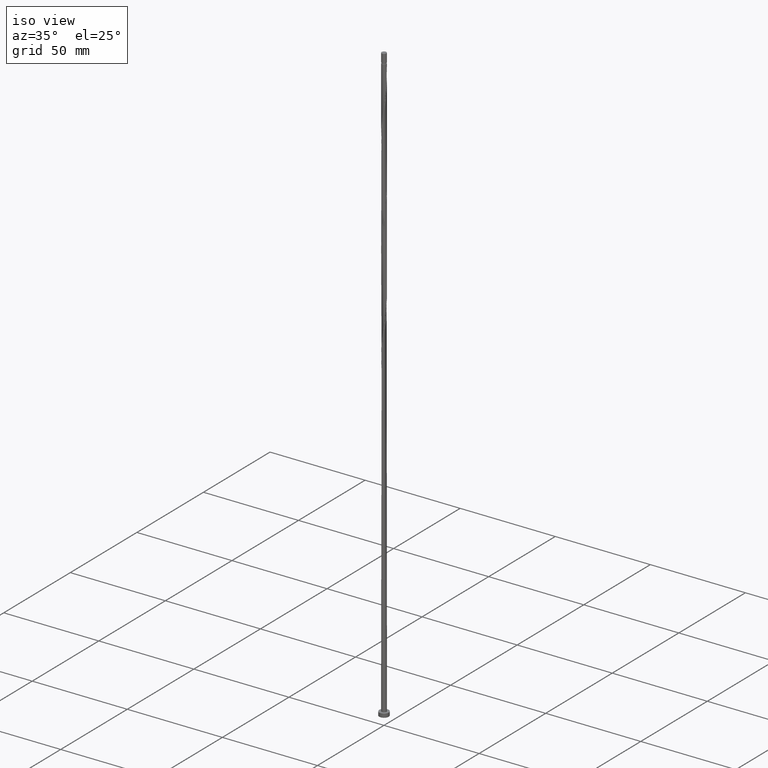
[diagram: clean part render]
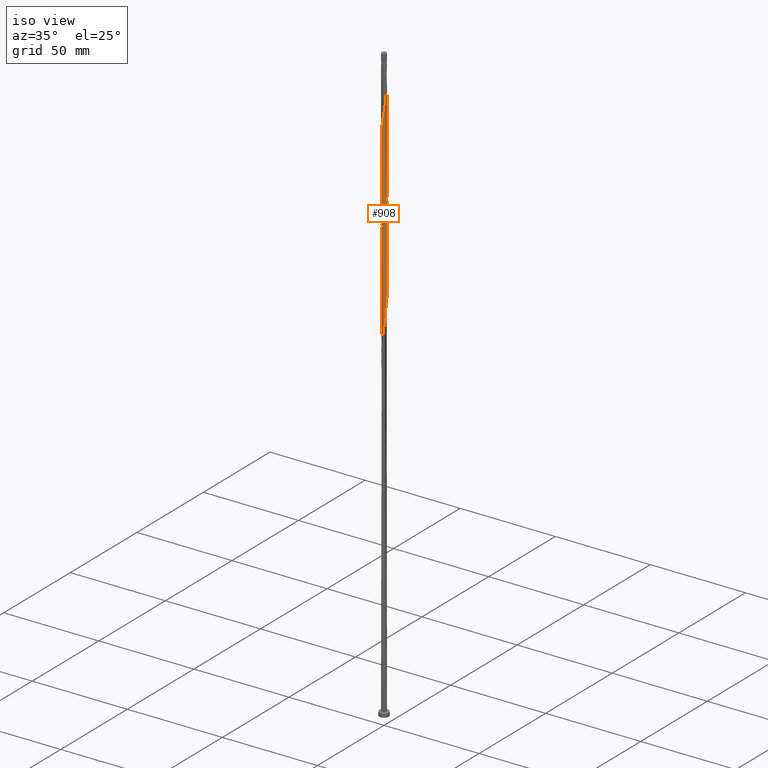
[diagram: same view with one face highlighted and labeled with its STEP entity id]
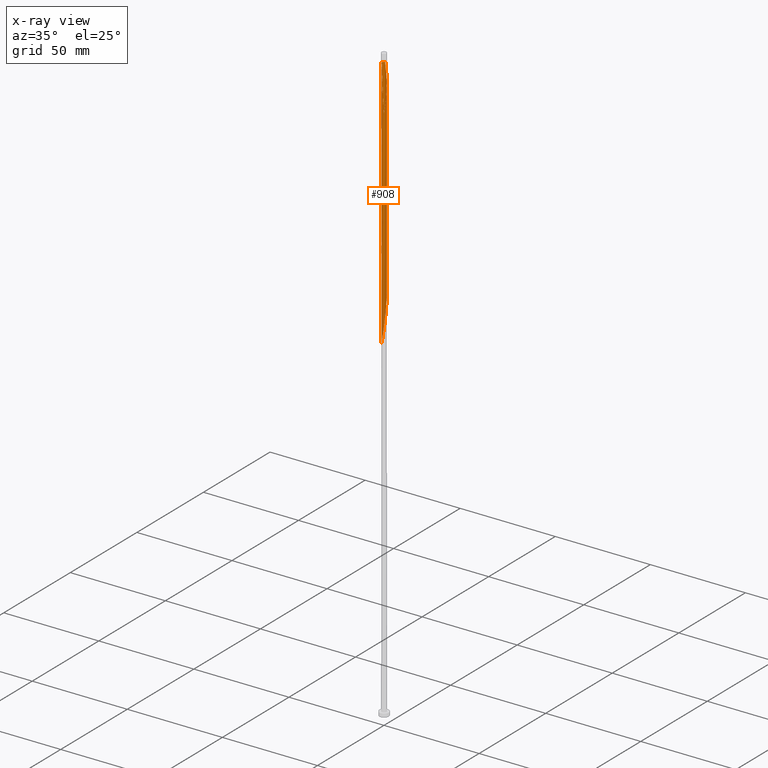
[diagram: x-ray of the same camera — body ghosted, the highlighted face saturated]
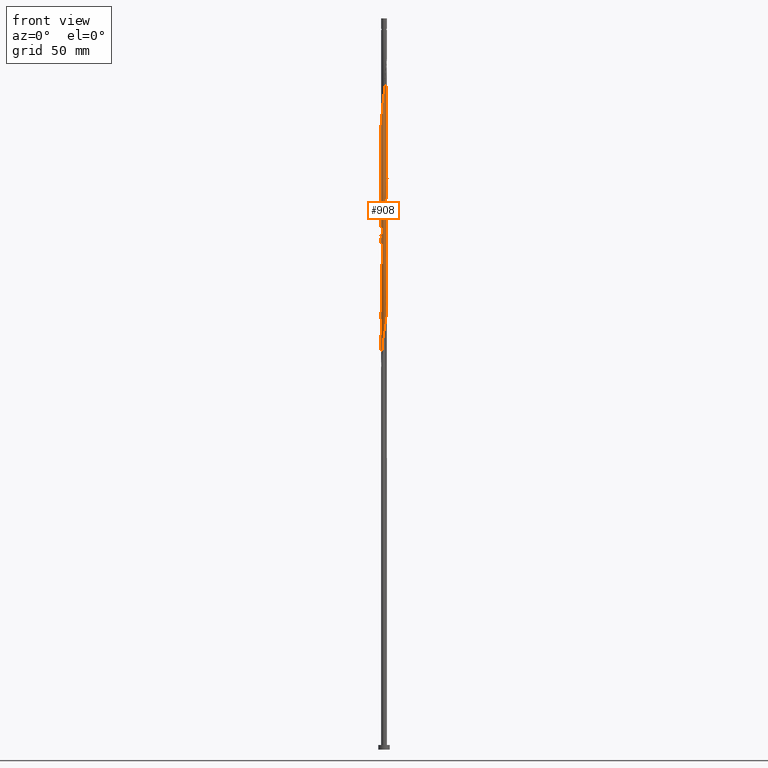
[diagram: same view with one face highlighted and labeled with its STEP entity id]
A machine part, iso view. The second image highlights one B-rep face of the part: STEP entity #908.
The next image is the same camera in x-ray: the body ghosted, the highlighted face saturated — about 0% of this face is hidden behind the body in this view.
A second angle (front view) of the same face is appended — the face is thin or edge-on in the first view.
In plain terms, the highlighted cylindrical surface (bore or boss wall) has radius 1.25 mm, axis along (-0, -0, -1).
Its self-contained STEP definition (entity closure, byte-faithful):
#13 = CARTESIAN_POINT ( 'NONE',  ( -0.9957596457837575299, 0.7556207566157809863, 266.8727693201498141 ) ) ;
#31 = CARTESIAN_POINT ( 'NONE',  ( 1.250000000000000444, 8.097232135427402911E-16, 246.0472863980558884 ) ) ;
#37 = CARTESIAN_POINT ( 'NONE',  ( 1.250000000000000444, 8.097232135427402911E-16, 246.0472863980558884 ) ) ;
#43 = CARTESIAN_POINT ( 'NONE',  ( -0.3073944042222366835, -1.211614080577170016, 279.9977693201497573 ) ) ;
#48 = CARTESIAN_POINT ( 'NONE',  ( 0.9106216336863114380, -0.8678159233401304684, 239.6852693201497857 ) ) ;
#57 = CARTESIAN_POINT ( 'NONE',  ( -0.9582531330244838941, -0.8026524360199506214, 225.6227693201498141 ) ) ;
#63 = CARTESIAN_POINT ( 'NONE',  ( -0.4439105247052367864, -1.176979049344608397, 279.0602693201499278 ) ) ;
#68 = CARTESIAN_POINT ( 'NONE',  ( 0.1708782837392372467, 1.246249111809732746, 307.1852693201498710 ) ) ;
#69 = CARTESIAN_POINT ( 'NONE',  ( 0.6434255898914319483, 1.080897657881203955, 202.1852693201497857 ) ) ;
#76 = DIRECTION ( 'NONE',  ( -1.000000000000000000, 0.000000000000000000, 0.000000000000000000 ) ) ;
#78 = CARTESIAN_POINT ( 'NONE',  ( 1.048690342708837875, 0.6946832383535894717, 198.4352693201497857 ) ) ;
#81 = CARTESIAN_POINT ( 'NONE',  ( -1.080897657881205953, -0.6434255898914326144, 273.4352693201498141 ) ) ;
#94 = CIRCLE ( 'NONE', #920, 1.249999999999974021 ) ;
#110 = CARTESIAN_POINT ( 'NONE',  ( -0.8678159233401304684, -0.9106216336863114380, 174.0602693201498141 ) ) ;
#116 = EDGE_CURVE ( 'NONE', #668, #904, #674, .T. ) ;
#117 = CARTESIAN_POINT ( 'NONE',  ( -1.080897657881204177, 0.6434255898914318372, 267.8102693201497573 ) ) ;
#126 = CARTESIAN_POINT ( 'NONE',  ( 0.2487468592766578501, 1.224999999999999645, 257.4977693201497573 ) ) ;
#140 = CARTESIAN_POINT ( 'NONE',  ( -1.250000000000000000, 6.194196011432944221E-16, 272.2972863980558600 ) ) ;
#146 = EDGE_LOOP ( 'NONE', ( #1219, #811, #637, #625, #961, #1635, #325, #615 ) ) ;
#151 = CARTESIAN_POINT ( 'NONE',  ( -1.196972960074379033, 0.3867712106542936512, 269.6852693201497573 ) ) ;
#167 = CARTESIAN_POINT ( 'NONE',  ( 1.250000000000000000, 1.530808498934191571E-16, 315.0000000000000000 ) ) ;
#168 = CARTESIAN_POINT ( 'NONE',  ( 1.224999999999999645, -0.2487468592766577391, 244.3727693201497857 ) ) ;
#176 = CARTESIAN_POINT ( 'NONE',  ( -1.211614080577168240, -0.3073944042222359063, 221.8727693201497573 ) ) ;
#182 = CARTESIAN_POINT ( 'NONE',  ( 1.196972960074381698, 0.3867712106542938177, 297.8102693201497573 ) ) ;
#187 = CARTESIAN_POINT ( 'NONE',  ( 0.1708782837392361920, -1.246249111809731192, 234.0602693201498425 ) ) ;
#196 = CARTESIAN_POINT ( 'NONE',  ( 0.03007788792010794229, 1.249638075867676612, 308.1227693201496436 ) ) ;
#197 = CARTESIAN_POINT ( 'NONE',  ( 0.9106216336863114380, -0.8678159233401304684, 187.1852693201497857 ) ) ;
#199 = EDGE_CURVE ( 'NONE', #1132, #1514, #871, .T. ) ;
#207 = CARTESIAN_POINT ( 'NONE',  ( 0.5692968815294126017, -1.112834696026721693, 236.8727693201497857 ) ) ;
#216 = CARTESIAN_POINT ( 'NONE',  ( 0.3073944042222357398, -1.211614080577168240, 182.4977693201497857 ) ) ;
#226 = DIRECTION ( 'NONE',  ( -0.000000000000000000, -0.000000000000000000, -1.000000000000000000 ) ) ;
#227 = CARTESIAN_POINT ( 'NONE',  ( -1.249638075867675280, -0.03007788792010730045, 167.4977693201498141 ) ) ;
#252 = CARTESIAN_POINT ( 'NONE',  ( -1.250000000000000000, 0.000000000000000000, 315.0000000000000000 ) ) ;
#268 = CARTESIAN_POINT ( 'NONE',  ( 0.1107225078990215772, 1.253027039925620034, 258.4352693201497004 ) ) ;
#278 = EDGE_CURVE ( 'NONE', #1058, #1514, #1361, .T. ) ;
#290 = CARTESIAN_POINT ( 'NONE',  ( 1.250000000000000000, 0.01504112145798889265, 246.1476490862810067 ) ) ;
#301 = CARTESIAN_POINT ( 'NONE',  ( 0.5150984002728631328, -1.138935308977793159, 285.6227693201497004 ) ) ;
#309 =( BOUNDED_CURVE ( )  B_SPLINE_CURVE ( 2, ( #140, #973, #1100, #151, #725, #117, #13, #439, #1127, #691, #708, #1527, #856, #991, #1389, #268, #126, #1256, #1413, #1798, #1804, #999, #565, #1117, #1560, #419, #573, #430, #982, #290, #864 ),
 .UNSPECIFIED., .F., .T. ) 
 B_SPLINE_CURVE_WITH_KNOTS ( ( 3, 2, 2, 2, 2, 2, 2, 2, 2, 2, 2, 2, 2, 2, 2, 3 ),
 ( 0.4295303401299221391, 0.4375000000000000000, 0.4464285714285714524, 0.4553571428571428492, 0.4642857142857143016, 0.4732142857142856984, 0.4821428571428571508, 0.4910714285714285476, 0.5000000000000000000, 0.5089285714285713969, 0.5178571428571429047, 0.5267857142857143016, 0.5357142857142856984, 0.5446428571428570953, 0.5535714285714286031, 0.5545303401299218615 ),
 .UNSPECIFIED. ) 
 CURVE ( )  GEOMETRIC_REPRESENTATION_ITEM ( )  RATIONAL_B_SPLINE_CURVE ( ( 0.9079949616362634757, 0.9039886423361265244, 0.9090909090909936596, 0.9033747362666680880, 0.9090909090909936596, 0.9033747362666680880, 0.9090909090909936596, 0.9033747362666680880, 0.9090909090909936596, 0.9033747362666680880, 0.9090909090909936596, 0.9033747362666680880, 0.9090909090909936596, 0.9033747362666680880, 0.9090909090909936596, 0.9033747362666680880, 0.9090909090909936596, 0.9033747362666680880, 0.9090909090909936596, 0.9033747362666680880, 0.9090909090909936596, 0.9033747362666680880, 0.9090909090909936596, 0.9033747362666680880, 0.9090909090909936596, 0.9033747362666680880, 0.9090909090909936596, 0.9033747362666680880, 0.9090909090909936596, 0.9084770030215354453, 0.9079949616362638087 ) ) 
 REPRESENTATION_ITEM ( '' )  );
#311 = CARTESIAN_POINT ( 'NONE',  ( 1.112834696026723247, -0.5692968815294138230, 291.2477693201497573 ) ) ;
#317 = CARTESIAN_POINT ( 'NONE',  ( 1.246249111809731192, 0.1708782837392361365, 194.6852693201497857 ) ) ;
#324 = CARTESIAN_POINT ( 'NONE',  ( 1.253027039925622255, 0.1107225078990213690, 295.9352693201499278 ) ) ;
#325 = ORIENTED_EDGE ( 'NONE', *, *, #1773, .T. ) ;
#328 = CARTESIAN_POINT ( 'NONE',  ( -0.03007788792010740106, 1.249638075867675280, 206.8727693201498141 ) ) ;
#338 = CARTESIAN_POINT ( 'NONE',  ( -1.250000000000001998, -2.723953667678323534E-16, 268.9482522422436546 ) ) ;
#342 = CARTESIAN_POINT ( 'NONE',  ( -0.3073944042222359618, 1.211614080577168240, 208.7477693201497573 ) ) ;
#350 = CARTESIAN_POINT ( 'NONE',  ( 1.196972960074379033, -0.3867712106542938177, 243.4352693201498141 ) ) ;
#362 = CARTESIAN_POINT ( 'NONE',  ( -0.2487468592766576836, -1.224999999999999645, 178.7477693201497289 ) ) ;
#396 = CARTESIAN_POINT ( 'NONE',  ( -1.211614080577168240, -0.3073944042222359063, 169.3727693201497857 ) ) ;
#409 = CARTESIAN_POINT ( 'NONE',  ( -0.6946832383535914701, -1.048690342708839429, 277.1852693201498710 ) ) ;
#419 = CARTESIAN_POINT ( 'NONE',  ( 1.176979049344605732, 0.4439105247052353431, 249.0602693201497004 ) ) ;
#430 = CARTESIAN_POINT ( 'NONE',  ( 1.246249111809731192, 0.1708782837392361365, 247.1852693201497289 ) ) ;
#436 = CARTESIAN_POINT ( 'NONE',  ( 0.4439105247052369529, 1.176979049344608175, 305.3102693201497573 ) ) ;
#439 = CARTESIAN_POINT ( 'NONE',  ( -0.9106216336863114380, 0.8678159233401304684, 265.9352693201497573 ) ) ;
#458 = CARTESIAN_POINT ( 'NONE',  ( 0.3867712106542939288, -1.196972960074381698, 284.6852693201498141 ) ) ;
#463 = CARTESIAN_POINT ( 'NONE',  ( -0.5150984002728626887, -1.138935308977791161, 229.3727693201497573 ) ) ;
#471 = CARTESIAN_POINT ( 'NONE',  ( 1.249638075867676612, -0.03007788792010785903, 294.9977693201496436 ) ) ;
#472 = VERTEX_POINT ( 'NONE', #1747 ) ;
#475 = CARTESIAN_POINT ( 'NONE',  ( 0.3867712106542938177, 1.196972960074379033, 204.0602693201497573 ) ) ;
#482 = CARTESIAN_POINT ( 'NONE',  ( -0.03007788792010775147, -1.249638075867676612, 281.8727693201496436 ) ) ;
#486 = CARTESIAN_POINT ( 'NONE',  ( -1.196972960074379033, 0.3867712106542936512, 217.1852693201498141 ) ) ;
#494 = CARTESIAN_POINT ( 'NONE',  ( -0.5692968815294127127, 1.112834696026721248, 210.6227693201497289 ) ) ;
#503 = CARTESIAN_POINT ( 'NONE',  ( -1.246249111809731192, -0.1708782837392362752, 220.9352693201497573 ) ) ;
#506 = EDGE_CURVE ( 'NONE', #904, #1132, #309, .T. ) ;
#507 = CARTESIAN_POINT ( 'NONE',  ( -0.9106216336863132144, -0.8678159233401315786, 275.3102693201498710 ) ) ;
#515 = CARTESIAN_POINT ( 'NONE',  ( 0.8026524360199506214, -0.9582531330244840051, 186.2477693201497573 ) ) ;
#528 = CARTESIAN_POINT ( 'NONE',  ( -1.250000000000000000, 0.000000000000000000, 315.0000000000000000 ) ) ;
#533 = CARTESIAN_POINT ( 'NONE',  ( -0.9582531330244838941, -0.8026524360199506214, 173.1227693201497573 ) ) ;
#541 = CARTESIAN_POINT ( 'NONE',  ( 0.6946832383535898048, -1.048690342708838097, 185.3102693201498141 ) ) ;
#565 = CARTESIAN_POINT ( 'NONE',  ( 0.9582531330244840051, 0.8026524360199506214, 251.8727693201497857 ) ) ;
#573 = CARTESIAN_POINT ( 'NONE',  ( 1.211614080577168462, 0.3073944042222357398, 248.1227693201497573 ) ) ;
#578 = VERTEX_POINT ( 'NONE', #694 ) ;
#607 = CARTESIAN_POINT ( 'NONE',  ( 0.7556207566157812083, 0.9957596457837575299, 201.2477693201497573 ) ) ;
#615 = ORIENTED_EDGE ( 'NONE', *, *, #506, .F. ) ;
#618 = CARTESIAN_POINT ( 'NONE',  ( -1.048690342708837875, -0.6946832383535898048, 224.6852693201497573 ) ) ;
#625 = ORIENTED_EDGE ( 'NONE', *, *, #278, .T. ) ;
#627 = CARTESIAN_POINT ( 'NONE',  ( -0.1107225078990230621, 1.253027039925622255, 309.0602693201499278 ) ) ;
#628 = CARTESIAN_POINT ( 'NONE',  ( -1.249638075867675280, -0.03007788792010730045, 219.9977693201497289 ) ) ;
#637 = ORIENTED_EDGE ( 'NONE', *, *, #1619, .F. ) ;
#639 = CARTESIAN_POINT ( 'NONE',  ( 1.112834696026721693, 0.5692968815294126017, 197.4977693201498141 ) ) ;
#641 = CARTESIAN_POINT ( 'NONE',  ( -1.250000000000001998, -2.723953667678323534E-16, 268.9482522422436546 ) ) ;
#650 = CARTESIAN_POINT ( 'NONE',  ( -0.6946832383535901378, 1.048690342708837875, 211.5602693201497289 ) ) ;
#668 = VERTEX_POINT ( 'NONE', #1661 ) ;
#674 = LINE ( 'NONE', #528, #891 ) ;
#681 = EDGE_CURVE ( 'NONE', #668, #472, #94, .T. ) ;
#686 = CARTESIAN_POINT ( 'NONE',  ( -1.048690342708837875, -0.6946832383535898048, 172.1852693201498141 ) ) ;
#691 = CARTESIAN_POINT ( 'NONE',  ( -0.6946832383535901378, 1.048690342708837875, 264.0602693201497573 ) ) ;
#694 = CARTESIAN_POINT ( 'NONE',  ( 1.250000000000000000, 1.530808498934191571E-16, 309.9977693201497573 ) ) ;
#708 = CARTESIAN_POINT ( 'NONE',  ( -0.5692968815294127127, 1.112834696026721248, 263.1227693201497004 ) ) ;
#725 = CARTESIAN_POINT ( 'NONE',  ( -1.138935308977791161, 0.5150984002728626887, 268.7477693201497004 ) ) ;
#740 = CARTESIAN_POINT ( 'NONE',  ( -0.4439105247052356207, 1.176979049344605732, 209.6852693201497573 ) ) ;
#747 = FACE_OUTER_BOUND ( 'NONE', #146, .T. ) ;
#751 = CARTESIAN_POINT ( 'NONE',  ( 0.4439105247052355097, -1.176979049344605732, 235.9352693201497289 ) ) ;
#760 = CARTESIAN_POINT ( 'NONE',  ( 1.080897657881203955, -0.6434255898914319483, 189.0602693201498141 ) ) ;
#762 = CARTESIAN_POINT ( 'NONE',  ( -1.250000000000001554, -0.1256297269074057310, 269.7865233212073690 ) ) ;
#769 = CARTESIAN_POINT ( 'NONE',  ( -0.7556207566157812083, -0.9957596457837575299, 227.4977693201497573 ) ) ;
#783 = CARTESIAN_POINT ( 'NONE',  ( 1.080897657881203955, -0.6434255898914319483, 241.5602693201497857 ) ) ;
#786 = CARTESIAN_POINT ( 'NONE',  ( -1.225000000000000977, -0.2487468592766576281, 270.6227693201497004 ) ) ;
#811 = ORIENTED_EDGE ( 'NONE', *, *, #681, .T. ) ;
#822 = VECTOR ( 'NONE', #1310, 1000.000000000000000 ) ;
#828 = CARTESIAN_POINT ( 'NONE',  ( -1.176979049344605732, -0.4439105247052355097, 170.3102693201497857 ) ) ;
#838 = CARTESIAN_POINT ( 'NONE',  ( 0.9957596457837593062, 0.7556207566157816524, 300.6227693201497004 ) ) ;
#845 = CARTESIAN_POINT ( 'NONE',  ( 0.8026524360199519537, 0.9582531330244847823, 302.4977693201497004 ) ) ;
#853 = CARTESIAN_POINT ( 'NONE',  ( 0.5692968815294138230, 1.112834696026723247, 304.3727693201497004 ) ) ;
#856 = CARTESIAN_POINT ( 'NONE',  ( -0.3073944042222359618, 1.211614080577168240, 261.2477693201497004 ) ) ;
#864 = CARTESIAN_POINT ( 'NONE',  ( 1.250000000000000444, 8.097232135427402911E-16, 246.0472863980558884 ) ) ;
#871 =( BOUNDED_CURVE ( )  B_SPLINE_CURVE ( 2, ( #37, #1458, #168, #350, #1193, #783, #1741, #48, #1159, #1750, #207, #751, #1311, #187, #1172, #1721, #1617, #1060, #463, #1433, #769, #1446, #57, #618, #1466, #1201, #176, #503, #628, #1732, #1184, #486, #917, #1584, #1628, #1476, #876, #650, #494, #740, #342, #1341, #328, #1331, #1040, #475, #1297, #69, #607, #1607, #1030, #78, #639, #1711, #1022, #317, #1052, #906, #888, #1598, #899, #760, #1319, #197, #515, #541, #1096, #1759, #216, #1228, #1211, #1662, #362, #1350, #1383, #1645, #955, #110, #533, #686, #938, #828, #396, #1637, #227, #1069, #962 ),
 .UNSPECIFIED., .F., .T. ) 
 B_SPLINE_CURVE_WITH_KNOTS ( ( 3, 2, 2, 2, 2, 2, 2, 2, 2, 2, 2, 2, 2, 2, 2, 2, 2, 2, 2, 2, 2, 2, 2, 2, 2, 2, 2, 2, 2, 2, 2, 2, 2, 2, 2, 2, 2, 2, 2, 2, 2, 2, 2, 3 ),
 ( 0.5545303401299218615, 0.5625000000000000000, 0.5714285714285713969, 0.5803571428571429047, 0.5892857142857143016, 0.5982142857142856984, 0.6071428571428570953, 0.6160714285714286031, 0.6250000000000000000, 0.6339285714285713969, 0.6428571428571429047, 0.6517857142857143016, 0.6607142857142856984, 0.6696428571428570953, 0.6785714285714286031, 0.6875000000000000000, 0.6964285714285713969, 0.7053571428571429047, 0.7142857142857143016, 0.7232142857142856984, 0.7321428571428570953, 0.7410714285714286031, 0.7500000000000000000, 0.7589285714285713969, 0.7678571428571429047, 0.7767857142857143016, 0.7857142857142856984, 0.7946428571428570953, 0.8035714285714286031, 0.8125000000000000000, 0.8214285714285713969, 0.8303571428571429047, 0.8392857142857143016, 0.8482142857142856984, 0.8571428571428570953, 0.8660714285714286031, 0.8750000000000000000, 0.8839285714285713969, 0.8928571428571429047, 0.9017857142857144126, 0.9107142857142858094, 0.9196428571428572063, 0.9285714285714286031, 0.9295303401299217505 ),
 .UNSPECIFIED. ) 
 CURVE ( )  GEOMETRIC_REPRESENTATION_ITEM ( )  RATIONAL_B_SPLINE_CURVE ( ( 0.9079949616362638087, 0.9039886423361263024, 0.9090909090909936596, 0.9033747362666680880, 0.9090909090909936596, 0.9033747362666680880, 0.9090909090909936596, 0.9033747362666680880, 0.9090909090909936596, 0.9033747362666680880, 0.9090909090909936596, 0.9033747362666680880, 0.9090909090909936596, 0.9033747362666680880, 0.9090909090909936596, 0.9033747362666680880, 0.9090909090909936596, 0.9033747362666680880, 0.9090909090909936596, 0.9033747362666680880, 0.9090909090909936596, 0.9033747362666680880, 0.9090909090909936596, 0.9033747362666680880, 0.9090909090909936596, 0.9033747362666680880, 0.9090909090909936596, 0.9033747362666680880, 0.9090909090909936596, 0.9033747362666680880, 0.9090909090909936596, 0.9033747362666680880, 0.9090909090909936596, 0.9033747362666680880, 0.9090909090909936596, 0.9033747362666680880, 0.9090909090909936596, 0.9033747362666680880, 0.9090909090909936596, 0.9033747362666680880, 0.9090909090909936596, 0.9033747362666680880, 0.9090909090909936596, 0.9033747362666680880, 0.9090909090909936596, 0.9033747362666680880, 0.9090909090909936596, 0.9033747362666680880, 0.9090909090909936596, 0.9033747362666680880, 0.9090909090909936596, 0.9033747362666680880, 0.9090909090909936596, 0.9033747362666680880, 0.9090909090909936596, 0.9033747362666680880, 0.9090909090909936596, 0.9033747362666680880, 0.9090909090909936596, 0.9033747362666680880, 0.9090909090909936596, 0.9033747362666680880, 0.9090909090909936596, 0.9033747362666680880, 0.9090909090909936596, 0.9033747362666680880, 0.9090909090909936596, 0.9033747362666680880, 0.9090909090909936596, 0.9033747362666680880, 0.9090909090909936596, 0.9033747362666680880, 0.9090909090909936596, 0.9033747362666680880, 0.9090909090909936596, 0.9033747362666680880, 0.9090909090909936596, 0.9033747362666680880, 0.9090909090909936596, 0.9033747362666680880, 0.9090909090909936596, 0.9033747362666680880, 0.9090909090909936596, 0.9033747362666680880, 0.9090909090909936596, 0.9084770030215355563, 0.9079949616362640308 ) ) 
 REPRESENTATION_ITEM ( '' )  );
#873 = CARTESIAN_POINT ( 'NONE',  ( 0.7556207566157816524, -0.9957596457837590842, 287.4977693201497004 ) ) ;
#876 = CARTESIAN_POINT ( 'NONE',  ( -0.8026524360199506214, 0.9582531330244838941, 212.4977693201497289 ) ) ;
#883 = CARTESIAN_POINT ( 'NONE',  ( 0.6434255898914326144, -1.080897657881205953, 286.5602693201498710 ) ) ;
#887 = LINE ( 'NONE', #167, #822 ) ;
#888 = CARTESIAN_POINT ( 'NONE',  ( 1.224999999999999645, -0.2487468592766577391, 191.8727693201497857 ) ) ;
#891 = VECTOR ( 'NONE', #1224, 1000.000000000000000 ) ;
#899 = CARTESIAN_POINT ( 'NONE',  ( 1.138935308977791161, -0.5150984002728627997, 189.9977693201498425 ) ) ;
#904 = VERTEX_POINT ( 'NONE', #1625 ) ;
#906 = CARTESIAN_POINT ( 'NONE',  ( 1.253027039925620034, -0.1107225078990218131, 192.8102693201497857 ) ) ;
#908 = ADVANCED_FACE ( 'NONE', ( #747 ), #1294, .T. ) ;
#914 = DIRECTION ( 'NONE',  ( -0.000000000000000000, -0.000000000000000000, -1.000000000000000000 ) ) ;
#917 = CARTESIAN_POINT ( 'NONE',  ( -1.138935308977791161, 0.5150984002728626887, 216.2477693201497857 ) ) ;
#920 = AXIS2_PLACEMENT_3D ( 'NONE', #1498, #226, #1087 ) ;
#938 = CARTESIAN_POINT ( 'NONE',  ( -1.112834696026721693, -0.5692968815294127127, 171.2477693201497289 ) ) ;
#955 = CARTESIAN_POINT ( 'NONE',  ( -0.7556207566157812083, -0.9957596457837575299, 174.9977693201497573 ) ) ;
#961 = ORIENTED_EDGE ( 'NONE', *, *, #199, .F. ) ;
#962 = CARTESIAN_POINT ( 'NONE',  ( -1.250000000000000444, -9.365922884757042694E-16, 167.2972863980559168 ) ) ;
#973 = CARTESIAN_POINT ( 'NONE',  ( -1.249999999999999778, 0.1256297269074057310, 271.4590153190922024 ) ) ;
#978 = CARTESIAN_POINT ( 'NONE',  ( 0.9106216336863132144, 0.8678159233401314676, 301.5602693201498710 ) ) ;
#982 = CARTESIAN_POINT ( 'NONE',  ( 1.249638075867675280, 0.03007788792010718595, 246.2477693201498141 ) ) ;
#991 = CARTESIAN_POINT ( 'NONE',  ( -0.1708782837392364695, 1.246249111809731192, 260.3102693201497573 ) ) ;
#999 = CARTESIAN_POINT ( 'NONE',  ( 0.8678159233401304684, 0.9106216336863111049, 252.8102693201497857 ) ) ;
#1013 = CARTESIAN_POINT ( 'NONE',  ( 1.080897657881205953, 0.6434255898914326144, 299.6852693201498141 ) ) ;
#1022 = CARTESIAN_POINT ( 'NONE',  ( 1.211614080577168462, 0.3073944042222357398, 195.6227693201497289 ) ) ;
#1030 = CARTESIAN_POINT ( 'NONE',  ( 0.9582531330244840051, 0.8026524360199506214, 199.3727693201497857 ) ) ;
#1031 = VECTOR ( 'NONE', #1221, 1000.000000000000000 ) ;
#1036 = CARTESIAN_POINT ( 'NONE',  ( 0.2487468592766575171, -1.225000000000000977, 283.7477693201497573 ) ) ;
#1040 = CARTESIAN_POINT ( 'NONE',  ( 0.2487468592766578501, 1.224999999999999645, 204.9977693201498425 ) ) ;
#1052 = CARTESIAN_POINT ( 'NONE',  ( 1.249638075867675280, 0.03007788792010718595, 193.7477693201497857 ) ) ;
#1058 = VERTEX_POINT ( 'NONE', #338 ) ;
#1060 = CARTESIAN_POINT ( 'NONE',  ( -0.3867712106542938177, -1.196972960074379033, 230.3102693201497573 ) ) ;
#1062 = CARTESIAN_POINT ( 'NONE',  ( -0.8026524360199519537, -0.9582531330244850043, 276.2477693201497004 ) ) ;
#1069 = CARTESIAN_POINT ( 'NONE',  ( -1.250000000000000000, -0.01504112145799075401, 167.3976490862809783 ) ) ;
#1087 = DIRECTION ( 'NONE',  ( -1.000000000000000000, 0.000000000000000000, 0.000000000000000000 ) ) ;
#1096 = CARTESIAN_POINT ( 'NONE',  ( 0.5692968815294126017, -1.112834696026721693, 184.3727693201497573 ) ) ;
#1100 = CARTESIAN_POINT ( 'NONE',  ( -1.224999999999999645, 0.2487468592766575726, 270.6227693201497004 ) ) ;
#1117 = CARTESIAN_POINT ( 'NONE',  ( 1.048690342708837875, 0.6946832383535894717, 250.9352693201497573 ) ) ;
#1123 = CARTESIAN_POINT ( 'NONE',  ( 0.6946832383535916922, 1.048690342708839429, 303.4352693201498710 ) ) ;
#1127 = CARTESIAN_POINT ( 'NONE',  ( -0.8026524360199506214, 0.9582531330244838941, 264.9977693201498141 ) ) ;
#1132 = VERTEX_POINT ( 'NONE', #31 ) ;
#1154 = CARTESIAN_POINT ( 'NONE',  ( 0.9582531330244847823, -0.8026524360199519537, 289.3727693201495867 ) ) ;
#1159 = CARTESIAN_POINT ( 'NONE',  ( 0.8026524360199506214, -0.9582531330244840051, 238.7477693201497857 ) ) ;
#1166 = CARTESIAN_POINT ( 'NONE',  ( 1.211614080577170016, -0.3073944042222367945, 293.1227693201497004 ) ) ;
#1172 = CARTESIAN_POINT ( 'NONE',  ( 0.03007788792010724493, -1.249638075867675280, 233.1227693201497573 ) ) ;
#1182 = CARTESIAN_POINT ( 'NONE',  ( -1.250000000000000444, -9.365922884757042694E-16, 167.2972863980559168 ) ) ;
#1184 = CARTESIAN_POINT ( 'NONE',  ( -1.224999999999999645, 0.2487468592766575726, 218.1227693201497573 ) ) ;
#1193 = CARTESIAN_POINT ( 'NONE',  ( 1.138935308977791161, -0.5150984002728627997, 242.4977693201497004 ) ) ;
#1201 = CARTESIAN_POINT ( 'NONE',  ( -1.176979049344605732, -0.4439105247052355097, 222.8102693201498141 ) ) ;
#1211 = CARTESIAN_POINT ( 'NONE',  ( 0.03007788792010724493, -1.249638075867675280, 180.6227693201497857 ) ) ;
#1219 = ORIENTED_EDGE ( 'NONE', *, *, #116, .F. ) ;
#1221 = DIRECTION ( 'NONE',  ( -0.000000000000000000, -0.000000000000000000, -1.000000000000000000 ) ) ;
#1224 = DIRECTION ( 'NONE',  ( -0.000000000000000000, -0.000000000000000000, -1.000000000000000000 ) ) ;
#1228 = CARTESIAN_POINT ( 'NONE',  ( 0.1708782837392361920, -1.246249111809731192, 181.5602693201498141 ) ) ;
#1256 = CARTESIAN_POINT ( 'NONE',  ( 0.3867712106542938177, 1.196972960074379033, 256.5602693201497573 ) ) ;
#1264 = AXIS2_PLACEMENT_3D ( 'NONE', #1580, #914, #76 ) ;
#1271 = CARTESIAN_POINT ( 'NONE',  ( 1.138935308977793159, 0.5150984002728630218, 298.7477693201498141 ) ) ;
#1291 = CARTESIAN_POINT ( 'NONE',  ( -0.5692968815294137119, -1.112834696026723247, 278.1227693201498710 ) ) ;
#1294 = CYLINDRICAL_SURFACE ( 'NONE', #1264, 1.250000000000000000 ) ;
#1297 = CARTESIAN_POINT ( 'NONE',  ( 0.5150984002728629108, 1.138935308977791161, 203.1227693201497573 ) ) ;
#1304 = CARTESIAN_POINT ( 'NONE',  ( 1.176979049344608397, -0.4439105247052367864, 292.1852693201497573 ) ) ;
#1310 = DIRECTION ( 'NONE',  ( -0.000000000000000000, -0.000000000000000000, -1.000000000000000000 ) ) ;
#1311 = CARTESIAN_POINT ( 'NONE',  ( 0.3073944042222357398, -1.211614080577168240, 234.9977693201497289 ) ) ;
#1319 = CARTESIAN_POINT ( 'NONE',  ( 0.9957596457837575299, -0.7556207566157812083, 188.1227693201497289 ) ) ;
#1321 = CARTESIAN_POINT ( 'NONE',  ( -1.138935308977793159, -0.5150984002728631328, 272.4977693201498141 ) ) ;
#1330 = CARTESIAN_POINT ( 'NONE',  ( -0.2487468592766841902, 1.225000000000319611, 309.9977693201496436 ) ) ;
#1331 = CARTESIAN_POINT ( 'NONE',  ( 0.1107225078990215772, 1.253027039925620034, 205.9352693201497857 ) ) ;
#1341 = CARTESIAN_POINT ( 'NONE',  ( -0.1708782837392364695, 1.246249111809731192, 207.8102693201498141 ) ) ;
#1343 = CARTESIAN_POINT ( 'NONE',  ( -1.196972960074381698, -0.3867712106542939843, 271.5602693201497573 ) ) ;
#1350 = CARTESIAN_POINT ( 'NONE',  ( -0.3867712106542938177, -1.196972960074379033, 177.8102693201497857 ) ) ;
#1361 = LINE ( 'NONE', #252, #1031 ) ;
#1383 = CARTESIAN_POINT ( 'NONE',  ( -0.5150984002728626887, -1.138935308977791161, 176.8727693201497573 ) ) ;
#1389 = CARTESIAN_POINT ( 'NONE',  ( -0.03007788792010740106, 1.249638075867675280, 259.3727693201498141 ) ) ;
#1413 = CARTESIAN_POINT ( 'NONE',  ( 0.5150984002728629108, 1.138935308977791161, 255.6227693201497573 ) ) ;
#1428 = CARTESIAN_POINT ( 'NONE',  ( 1.048690342708839429, -0.6946832383535915811, 290.3102693201498141 ) ) ;
#1430 =( BOUNDED_CURVE ( )  B_SPLINE_CURVE ( 2, ( #641, #762, #786, #1343, #1321, #81, #1752, #507, #1062, #409, #1291, #63, #43, #1727, #482, #1593, #1036, #458, #301, #883, #873, #1441, #1154, #1428, #311, #1304, #1166, #1718, #471, #324, #1453, #182, #1271, #1013, #838, #978, #845, #1123, #853, #436, #1556, #68, #196, #627, #1330 ),
 .UNSPECIFIED., .F., .T. ) 
 B_SPLINE_CURVE_WITH_KNOTS ( ( 3, 2, 2, 2, 2, 2, 2, 2, 2, 2, 2, 2, 2, 2, 2, 2, 2, 2, 2, 2, 2, 2, 3 ),
 ( 0.5545303401299221946, 0.5625000000000000000, 0.5714285714285713969, 0.5803571428571427937, 0.5892857142857143016, 0.5982142857142856984, 0.6071428571428572063, 0.6160714285714286031, 0.6250000000000000000, 0.6339285714285713969, 0.6428571428571427937, 0.6517857142857144126, 0.6607142857142858094, 0.6696428571428573173, 0.6785714285714287142, 0.6875000000000001110, 0.6964285714285715079, 0.7053571428571429047, 0.7142857142857144126, 0.7232142857142858094, 0.7321428571428573173, 0.7410714285714287142, 0.7500000000000001110 ),
 .UNSPECIFIED. ) 
 CURVE ( )  GEOMETRIC_REPRESENTATION_ITEM ( )  RATIONAL_B_SPLINE_CURVE ( ( 0.9079949616362701370, 0.9039886423361329637, 0.9090909090910003210, 0.9033747362666745273, 0.9090909090910003210, 0.9033747362666745273, 0.9090909090910003210, 0.9033747362666745273, 0.9090909090910003210, 0.9033747362666745273, 0.9090909090910003210, 0.9033747362666745273, 0.9090909090910003210, 0.9033747362666745273, 0.9090909090910003210, 0.9033747362666745273, 0.9090909090910003210, 0.9033747362666745273, 0.9090909090910003210, 0.9033747362666745273, 0.9090909090910003210, 0.9033747362666745273, 0.9090909090910003210, 0.9033747362666745273, 0.9090909090910003210, 0.9033747362666745273, 0.9090909090910003210, 0.9033747362666745273, 0.9090909090910003210, 0.9033747362666745273, 0.9090909090910003210, 0.9033747362666745273, 0.9090909090910003210, 0.9033747362666745273, 0.9090909090910003210, 0.9033747362666745273, 0.9090909090910003210, 0.9033747362666745273, 0.9090909090910003210, 0.9033747362666745273, 0.9090909090910003210, 0.9033747362666745273, 0.9090909090910003210, 0.9033747362666744163, 0.9090909090910004320 ) ) 
 REPRESENTATION_ITEM ( '' )  );
#1433 = CARTESIAN_POINT ( 'NONE',  ( -0.6434255898914319483, -1.080897657881204177, 228.4352693201497857 ) ) ;
#1441 = CARTESIAN_POINT ( 'NONE',  ( 0.8678159233401315786, -0.9106216336863132144, 288.4352693201499278 ) ) ;
#1446 = CARTESIAN_POINT ( 'NONE',  ( -0.8678159233401304684, -0.9106216336863114380, 226.5602693201498141 ) ) ;
#1453 = CARTESIAN_POINT ( 'NONE',  ( 1.225000000000000977, 0.2487468592766574615, 296.8727693201497573 ) ) ;
#1458 = CARTESIAN_POINT ( 'NONE',  ( 1.250000000000000444, -0.1256297269074008460, 245.2090153190922877 ) ) ;
#1466 = CARTESIAN_POINT ( 'NONE',  ( -1.112834696026721693, -0.5692968815294127127, 223.7477693201497857 ) ) ;
#1476 = CARTESIAN_POINT ( 'NONE',  ( -0.9106216336863114380, 0.8678159233401304684, 213.4352693201498141 ) ) ;
#1498 = CARTESIAN_POINT ( 'NONE',  ( 0.000000000000000000, 0.000000000000000000, 309.9977693201497573 ) ) ;
#1514 = VERTEX_POINT ( 'NONE', #1182 ) ;
#1527 = CARTESIAN_POINT ( 'NONE',  ( -0.4439105247052356207, 1.176979049344605732, 262.1852693201498141 ) ) ;
#1556 = CARTESIAN_POINT ( 'NONE',  ( 0.3073944042222367945, 1.211614080577170016, 306.2477693201497573 ) ) ;
#1560 = CARTESIAN_POINT ( 'NONE',  ( 1.112834696026721693, 0.5692968815294126017, 249.9977693201497857 ) ) ;
#1580 = CARTESIAN_POINT ( 'NONE',  ( 0.000000000000000000, 0.000000000000000000, 315.0000000000000000 ) ) ;
#1584 = CARTESIAN_POINT ( 'NONE',  ( -1.080897657881204177, 0.6434255898914318372, 215.3102693201497573 ) ) ;
#1593 = CARTESIAN_POINT ( 'NONE',  ( 0.1107225078990214107, -1.253027039925622255, 282.8102693201499278 ) ) ;
#1598 = CARTESIAN_POINT ( 'NONE',  ( 1.196972960074379033, -0.3867712106542938177, 190.9352693201497573 ) ) ;
#1607 = CARTESIAN_POINT ( 'NONE',  ( 0.8678159233401304684, 0.9106216336863111049, 200.3102693201497289 ) ) ;
#1617 = CARTESIAN_POINT ( 'NONE',  ( -0.2487468592766576836, -1.224999999999999645, 231.2477693201497573 ) ) ;
#1619 = EDGE_CURVE ( 'NONE', #1058, #472, #1430, .T. ) ;
#1625 = CARTESIAN_POINT ( 'NONE',  ( -1.250000000000000000, 6.194196011432944221E-16, 272.2972863980558600 ) ) ;
#1628 = CARTESIAN_POINT ( 'NONE',  ( -0.9957596457837575299, 0.7556207566157809863, 214.3727693201497573 ) ) ;
#1635 = ORIENTED_EDGE ( 'NONE', *, *, #1773, .F. ) ;
#1637 = CARTESIAN_POINT ( 'NONE',  ( -1.246249111809731192, -0.1708782837392362752, 168.4352693201497857 ) ) ;
#1645 = CARTESIAN_POINT ( 'NONE',  ( -0.6434255898914319483, -1.080897657881204177, 175.9352693201497857 ) ) ;
#1661 = CARTESIAN_POINT ( 'NONE',  ( -1.249999999999974021, 0.000000000000000000, 309.9977693201497573 ) ) ;
#1662 = CARTESIAN_POINT ( 'NONE',  ( -0.1107225078990217160, -1.253027039925620034, 179.6852693201498425 ) ) ;
#1711 = CARTESIAN_POINT ( 'NONE',  ( 1.176979049344605732, 0.4439105247052353431, 196.5602693201497857 ) ) ;
#1718 = CARTESIAN_POINT ( 'NONE',  ( 1.246249111809732746, -0.1708782837392371634, 294.0602693201498710 ) ) ;
#1721 = CARTESIAN_POINT ( 'NONE',  ( -0.1107225078990217160, -1.253027039925620034, 232.1852693201497573 ) ) ;
#1727 = CARTESIAN_POINT ( 'NONE',  ( -0.1708782837392370246, -1.246249111809732968, 280.9352693201498141 ) ) ;
#1732 = CARTESIAN_POINT ( 'NONE',  ( -1.253027039925620034, 0.1107225078990216327, 219.0602693201497573 ) ) ;
#1741 = CARTESIAN_POINT ( 'NONE',  ( 0.9957596457837575299, -0.7556207566157812083, 240.6227693201497289 ) ) ;
#1747 = CARTESIAN_POINT ( 'NONE',  ( -0.2487468592766841902, 1.225000000000319611, 309.9977693201496436 ) ) ;
#1750 = CARTESIAN_POINT ( 'NONE',  ( 0.6946832383535898048, -1.048690342708838097, 237.8102693201497289 ) ) ;
#1752 = CARTESIAN_POINT ( 'NONE',  ( -0.9957596457837590842, -0.7556207566157816524, 274.3727693201497573 ) ) ;
#1759 = CARTESIAN_POINT ( 'NONE',  ( 0.4439105247052355097, -1.176979049344605732, 183.4352693201497573 ) ) ;
#1773 = EDGE_CURVE ( 'NONE', #578, #1132, #887, .T. ) ;
#1798 = CARTESIAN_POINT ( 'NONE',  ( 0.6434255898914319483, 1.080897657881203955, 254.6852693201497857 ) ) ;
#1804 = CARTESIAN_POINT ( 'NONE',  ( 0.7556207566157812083, 0.9957596457837575299, 253.7477693201497573 ) ) ;